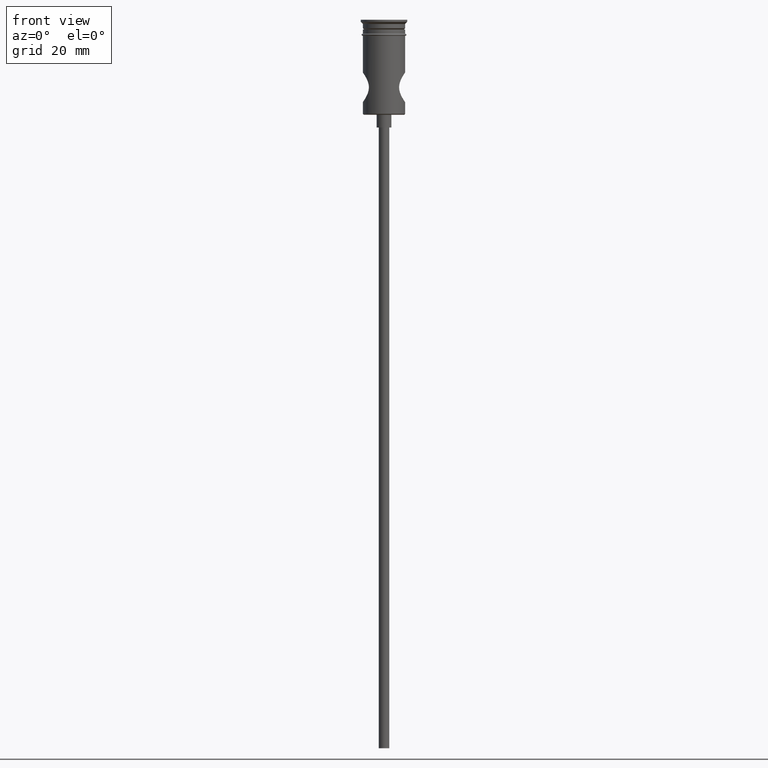
[diagram: clean part render]
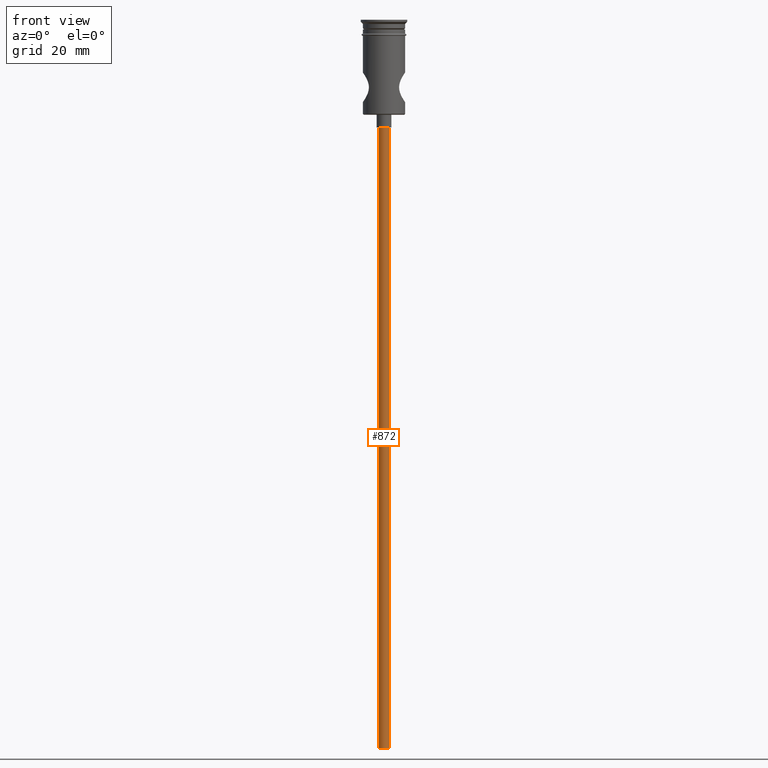
[diagram: same view with one face highlighted and labeled with its STEP entity id]
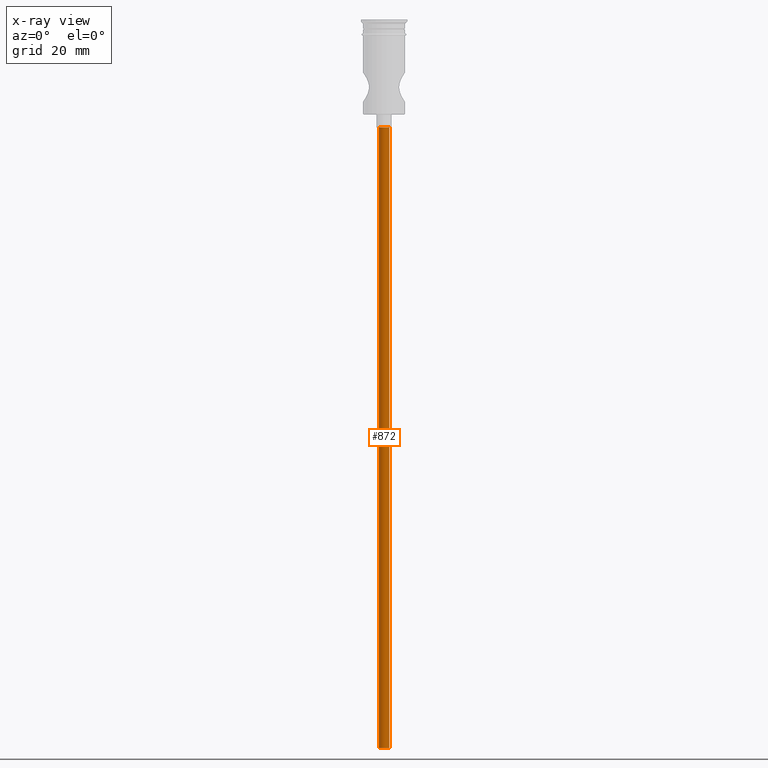
[diagram: x-ray of the same camera — body ghosted, the highlighted face saturated]
A machine part, front view. The second image highlights one B-rep face of the part: STEP entity #872.
The next image is the same camera in x-ray: the body ghosted, the highlighted face saturated — about 0% of this face is hidden behind the body in this view.
In plain terms, the highlighted cylindrical surface (edge-blend (fillet) strip) has radius 1.25 mm, axis along (-0, -0, 1).
Its self-contained STEP definition (entity closure, byte-faithful):
#7 = CARTESIAN_POINT ( 'NONE',  ( 0.000000000000000000, 0.000000000000000000, -172.5000000000000000 ) ) ;
#38 = EDGE_CURVE ( 'NONE', #283, #1068, #1240, .T. ) ;
#112 = CARTESIAN_POINT ( 'NONE',  ( -1.250000000000000000, 1.530808498934191571E-16, -172.5000000000000000 ) ) ;
#114 = CIRCLE ( 'NONE', #769, 1.250000000000000000 ) ;
#149 = ORIENTED_EDGE ( 'NONE', *, *, #706, .T. ) ;
#164 = CARTESIAN_POINT ( 'NONE',  ( -1.250000000000000000, 1.530808498934191571E-16, -25.50000000000000000 ) ) ;
#171 = AXIS2_PLACEMENT_3D ( 'NONE', #1090, #1418, #538 ) ;
#173 = VERTEX_POINT ( 'NONE', #164 ) ;
#225 = EDGE_CURVE ( 'NONE', #1215, #173, #344, .T. ) ;
#245 = CARTESIAN_POINT ( 'NONE',  ( 1.250000000000000000, 0.000000000000000000, -172.5000000000000000 ) ) ;
#256 = DIRECTION ( 'NONE',  ( -0.000000000000000000, -0.000000000000000000, 1.000000000000000000 ) ) ;
#283 = VERTEX_POINT ( 'NONE', #1432 ) ;
#318 = EDGE_LOOP ( 'NONE', ( #384, #1339, #1245, #149 ) ) ;
#344 = LINE ( 'NONE', #471, #1019 ) ;
#378 = VECTOR ( 'NONE', #1097, 1000.000000000000000 ) ;
#384 = ORIENTED_EDGE ( 'NONE', *, *, #225, .F. ) ;
#452 = DIRECTION ( 'NONE',  ( -1.000000000000000000, 0.000000000000000000, 0.000000000000000000 ) ) ;
#459 = DIRECTION ( 'NONE',  ( 0.000000000000000000, 0.000000000000000000, -1.000000000000000000 ) ) ;
#471 = CARTESIAN_POINT ( 'NONE',  ( -1.250000000000000000, 1.530808498934191571E-16, -172.5000000000000000 ) ) ;
#538 = DIRECTION ( 'NONE',  ( 1.000000000000000000, 0.000000000000000000, 0.000000000000000000 ) ) ;
#624 = FACE_OUTER_BOUND ( 'NONE', #318, .T. ) ;
#633 = AXIS2_PLACEMENT_3D ( 'NONE', #1069, #1291, #1392 ) ;
#658 = EDGE_CURVE ( 'NONE', #283, #1215, #114, .T. ) ;
#706 = EDGE_CURVE ( 'NONE', #1068, #173, #1058, .T. ) ;
#769 = AXIS2_PLACEMENT_3D ( 'NONE', #7, #459, #452 ) ;
#872 = ADVANCED_FACE ( 'NONE', ( #624 ), #1296, .T. ) ;
#1019 = VECTOR ( 'NONE', #256, 1000.000000000000000 ) ;
#1058 = CIRCLE ( 'NONE', #633, 1.250000000000000000 ) ;
#1068 = VERTEX_POINT ( 'NONE', #1305 ) ;
#1069 = CARTESIAN_POINT ( 'NONE',  ( 0.000000000000000000, 0.000000000000000000, -25.50000000000000000 ) ) ;
#1090 = CARTESIAN_POINT ( 'NONE',  ( 0.000000000000000000, 0.000000000000000000, -172.5000000000000000 ) ) ;
#1097 = DIRECTION ( 'NONE',  ( -0.000000000000000000, -0.000000000000000000, 1.000000000000000000 ) ) ;
#1215 = VERTEX_POINT ( 'NONE', #112 ) ;
#1240 = LINE ( 'NONE', #245, #378 ) ;
#1245 = ORIENTED_EDGE ( 'NONE', *, *, #38, .T. ) ;
#1291 = DIRECTION ( 'NONE',  ( 0.000000000000000000, 0.000000000000000000, -1.000000000000000000 ) ) ;
#1296 = CYLINDRICAL_SURFACE ( 'NONE', #171, 1.250000000000000000 ) ;
#1305 = CARTESIAN_POINT ( 'NONE',  ( 1.250000000000000000, 0.000000000000000000, -25.50000000000000000 ) ) ;
#1339 = ORIENTED_EDGE ( 'NONE', *, *, #658, .F. ) ;
#1392 = DIRECTION ( 'NONE',  ( -1.000000000000000000, 0.000000000000000000, 0.000000000000000000 ) ) ;
#1418 = DIRECTION ( 'NONE',  ( -0.000000000000000000, -0.000000000000000000, 1.000000000000000000 ) ) ;
#1432 = CARTESIAN_POINT ( 'NONE',  ( 1.250000000000000000, 0.000000000000000000, -172.5000000000000000 ) ) ;